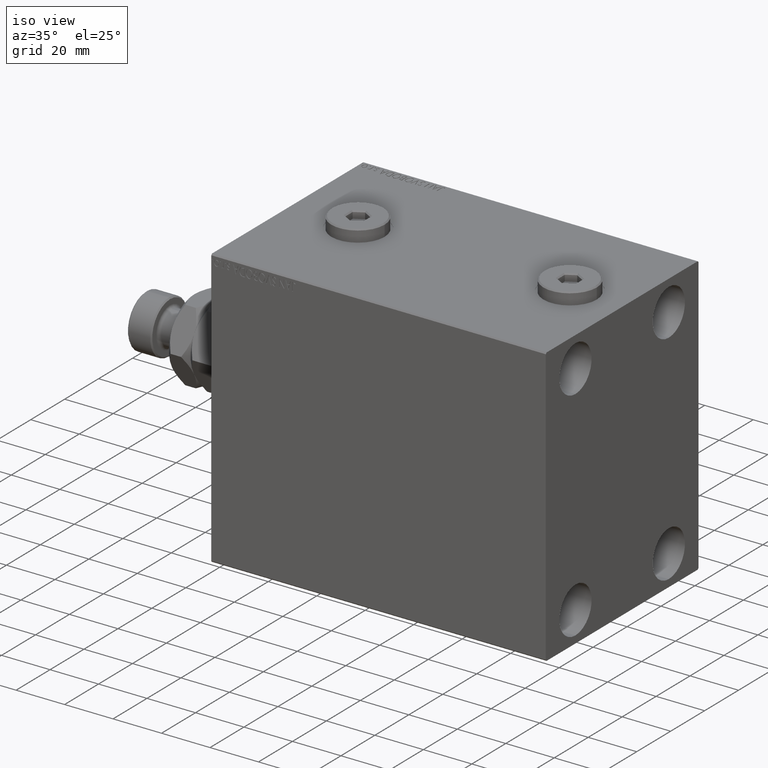
[diagram: clean part render]
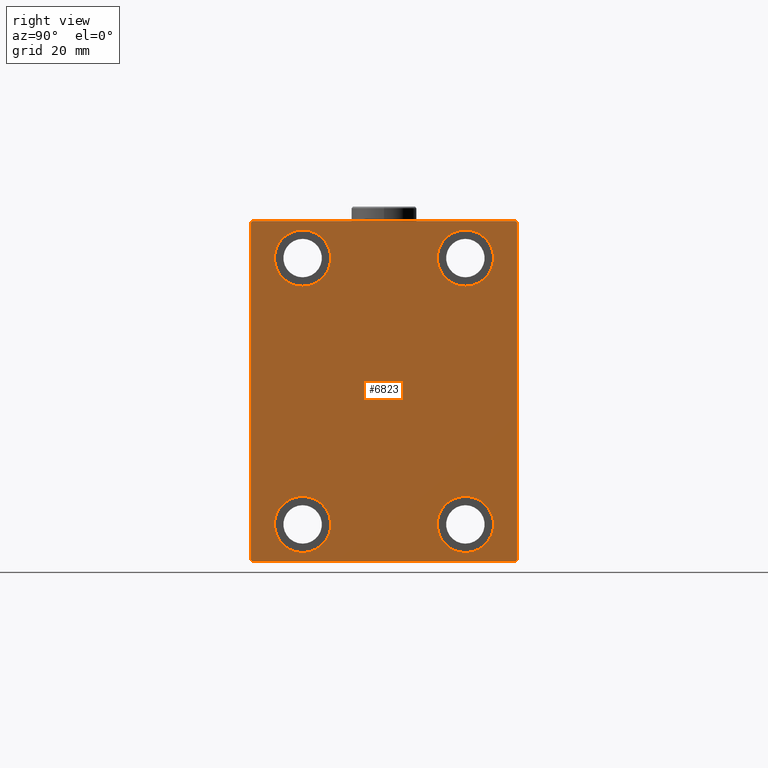
[diagram: tour spotlight — one face highlighted and labeled with its STEP entity id]
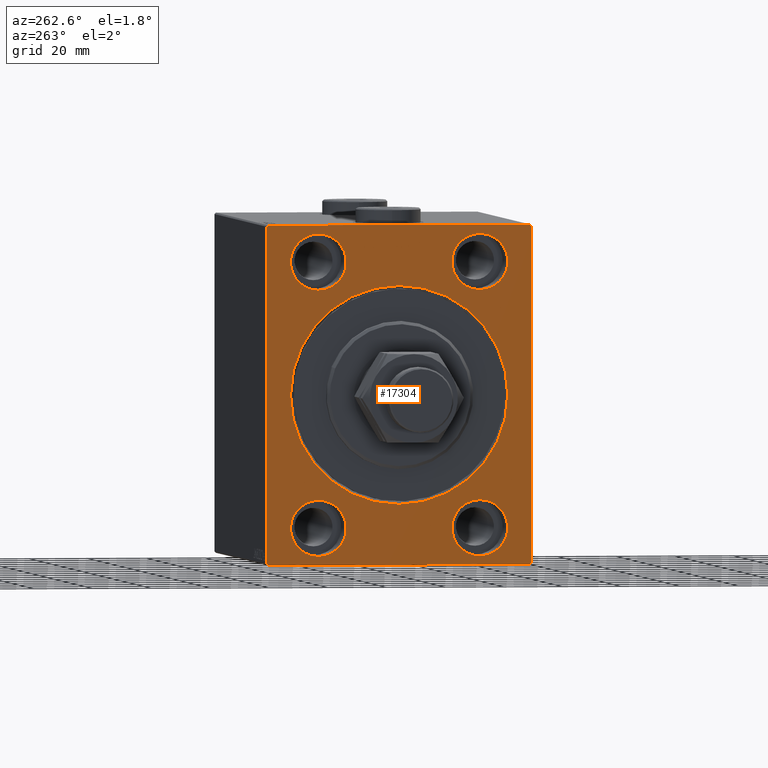
[diagram: tour spotlight — one face highlighted and labeled with its STEP entity id]
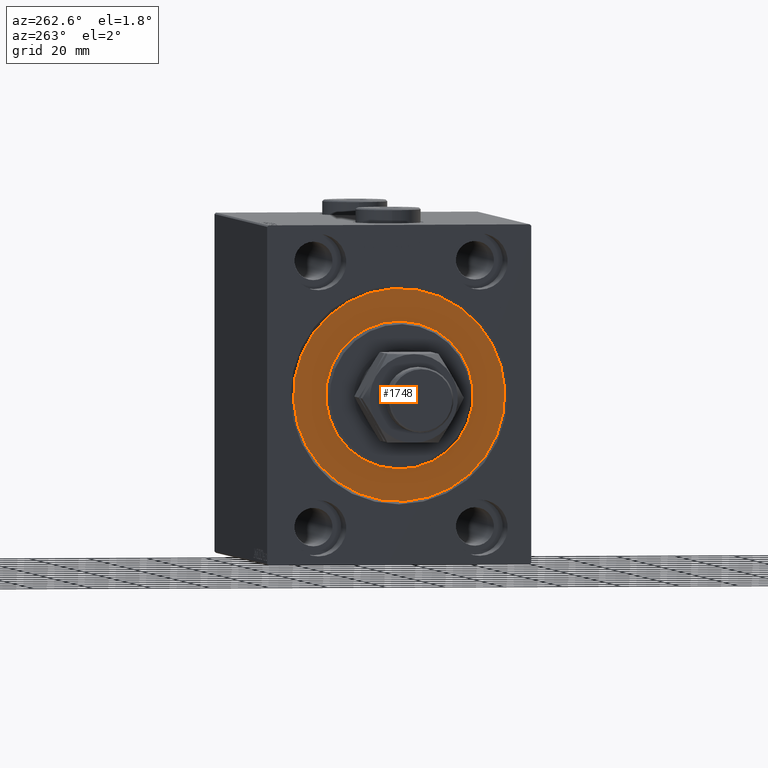
[diagram: tour spotlight — one face highlighted and labeled with its STEP entity id]
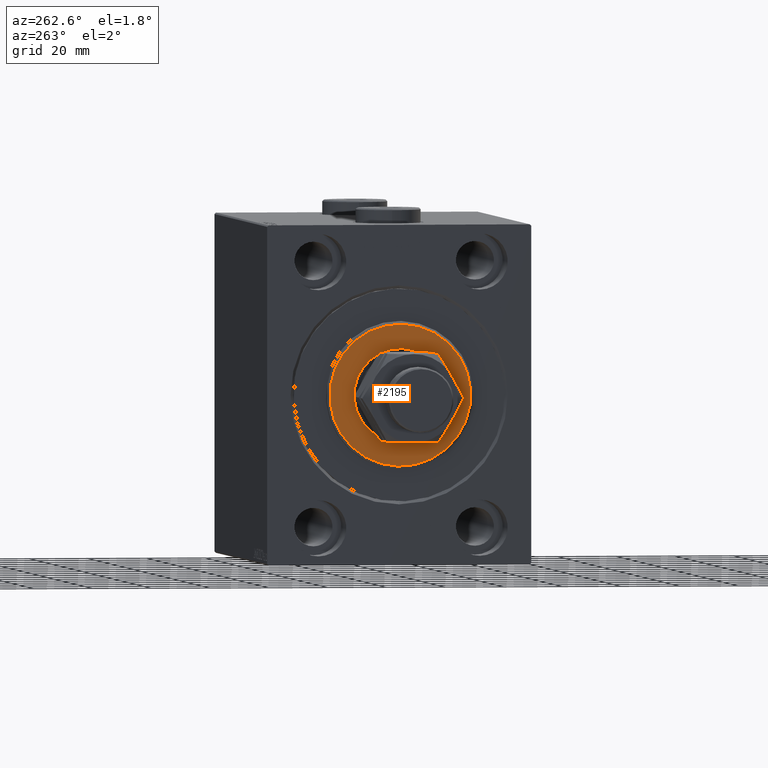
[diagram: tour spotlight — one face highlighted and labeled with its STEP entity id]
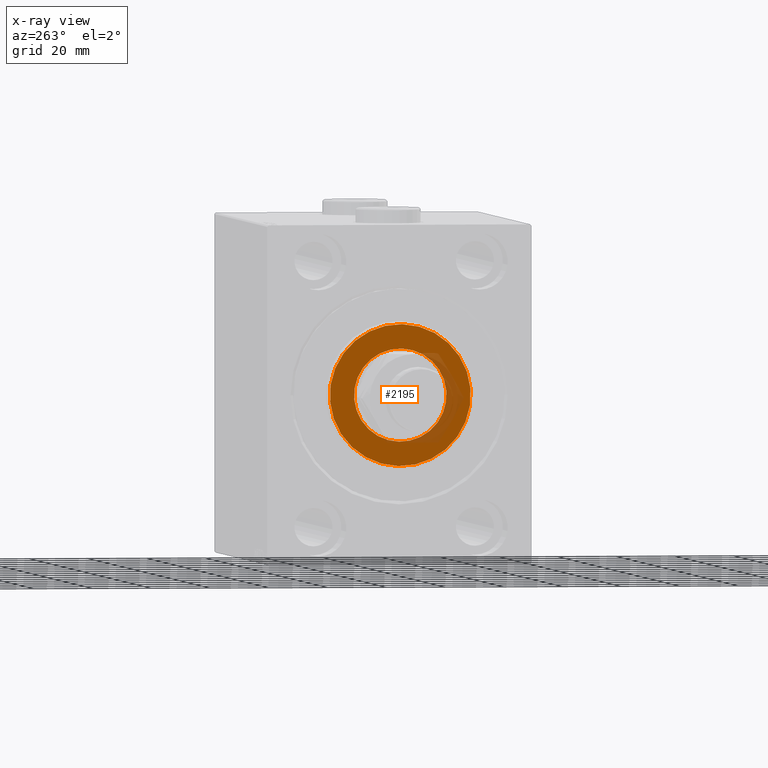
[diagram: x-ray of the same camera — body ghosted, this tour face saturated]
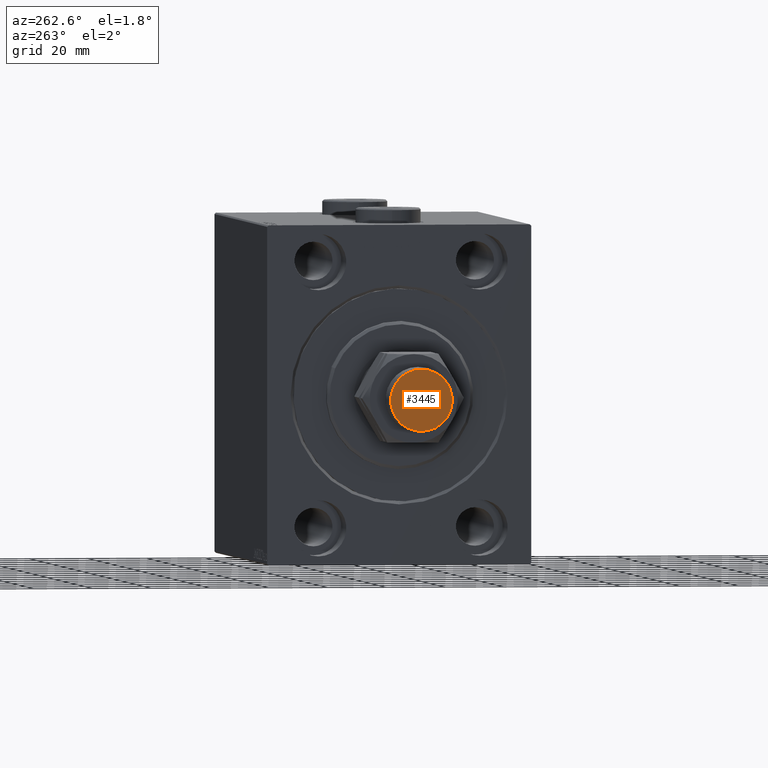
[diagram: tour spotlight — one face highlighted and labeled with its STEP entity id]
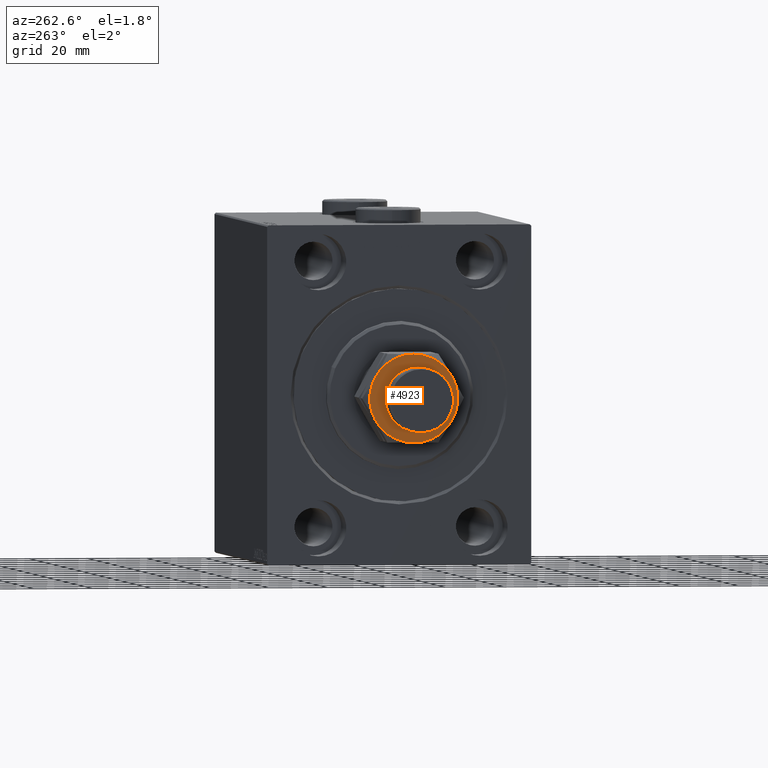
[diagram: tour spotlight — one face highlighted and labeled with its STEP entity id]
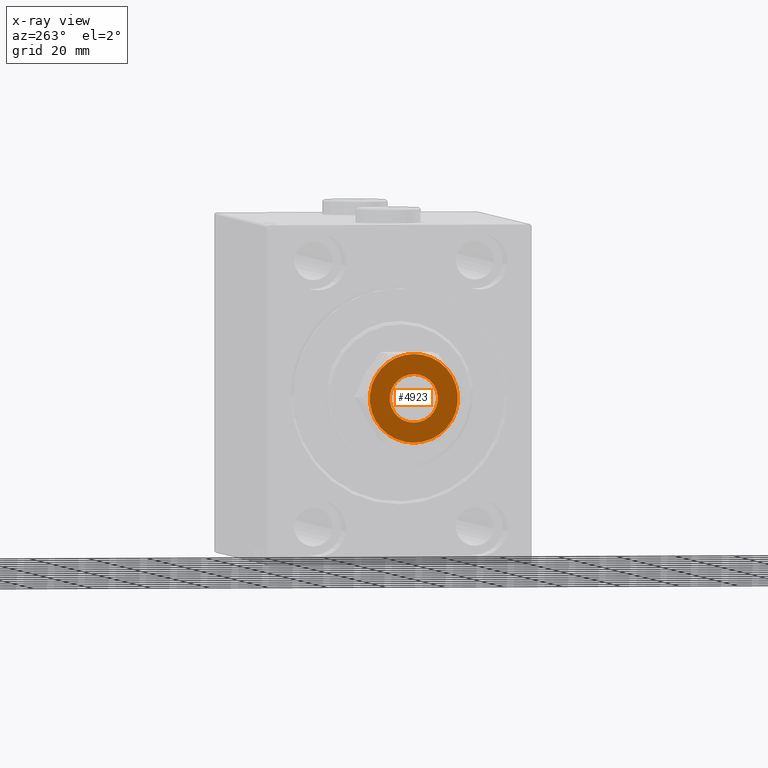
[diagram: x-ray of the same camera — body ghosted, this tour face saturated]
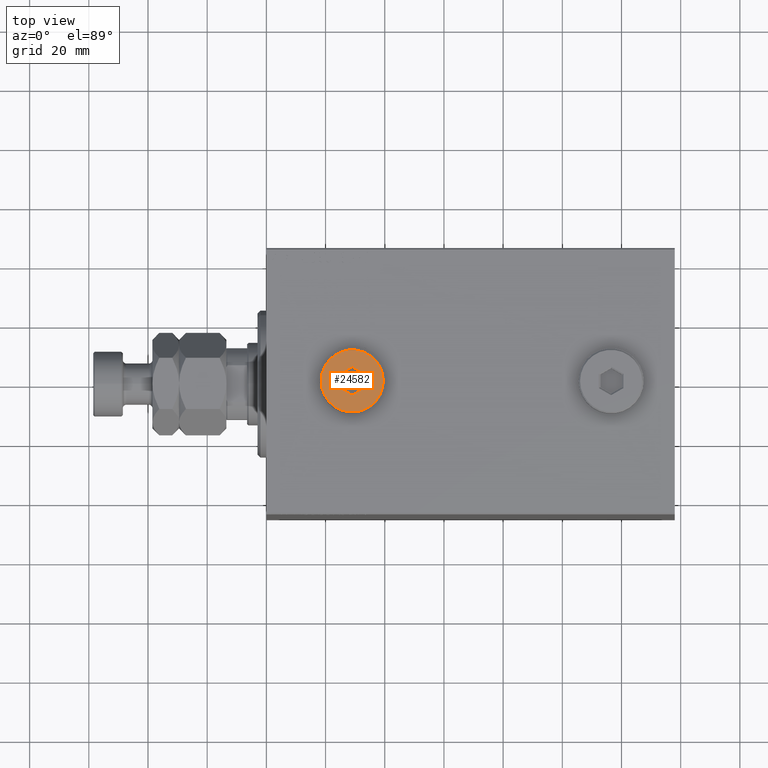
[diagram: tour spotlight — one face highlighted and labeled with its STEP entity id]
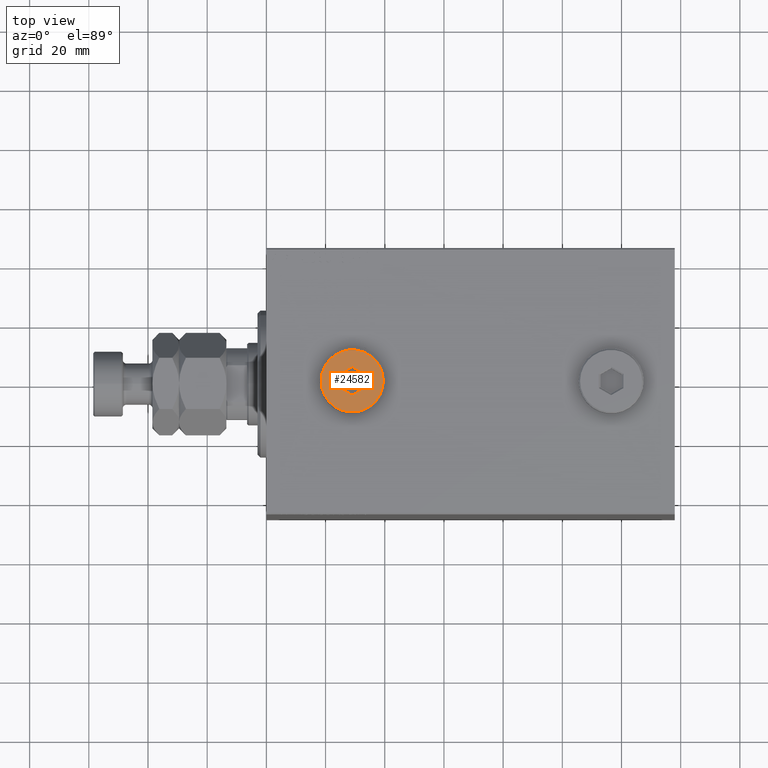
[diagram: tour spotlight — one face highlighted and labeled with its STEP entity id]
A machine part: a face-by-face anatomy tour. The part has 971 B-rep faces; the first image is the clean iso view, then the 8 largest visible faces are spotlighted one at a time (largest first), each with its STEP entity span.

Face 1 — right view, entity #6823. In plain terms, the highlighted planar face has unit normal (1, 0, 0).
Definition (entity closure, byte-faithful):
#259 = VERTEX_POINT ( 'NONE', #20999 ) ;
#633 = FACE_BOUND ( 'NONE', #39600, .T. ) ;
#1250 = CIRCLE ( 'NONE', #28539, 9.500000000000001776 ) ;
#1330 = PLANE ( 'NONE',  #40350 ) ;
#2190 = CARTESIAN_POINT ( 'NONE',  ( 138.0000000000000000, 45.00000000000001421, -57.50000000000000711 ) ) ;
#2243 = VECTOR ( 'NONE', #8133, 1000.000000000000114 ) ;
#2606 = VERTEX_POINT ( 'NONE', #5081 ) ;
#3228 = DIRECTION ( 'NONE',  ( 0.000000000000000000, 0.000000000000000000, 1.000000000000000000 ) ) ;
#3335 = AXIS2_PLACEMENT_3D ( 'NONE', #42101, #9553, #24047 ) ;
#3443 = ORIENTED_EDGE ( 'NONE', *, *, #8378, .T. ) ;
#3777 = DIRECTION ( 'NONE',  ( 0.000000000000000000, 0.000000000000000000, -1.000000000000000000 ) ) ;
#3875 = VERTEX_POINT ( 'NONE', #25778 ) ;
#3960 = VERTEX_POINT ( 'NONE', #7481 ) ;
#4338 = LINE ( 'NONE', #7898, #2243 ) ;
#4898 = DIRECTION ( 'NONE',  ( 1.000000000000000000, 0.000000000000000000, 0.000000000000000000 ) ) ;
#5053 = CARTESIAN_POINT ( 'NONE',  ( 138.0000000000000000, -44.50000000000000000, 57.49999999999999289 ) ) ;
#5081 = CARTESIAN_POINT ( 'NONE',  ( 138.0000000000000000, 45.00000000000000000, 56.99999999999997868 ) ) ;
#5139 = CARTESIAN_POINT ( 'NONE',  ( 138.0000000000000000, -27.50000000000000000, -54.49999999999998579 ) ) ;
#5606 = CIRCLE ( 'NONE', #3335, 9.500000000000001776 ) ;
#6158 = CARTESIAN_POINT ( 'NONE',  ( 138.0000000000000000, -27.49999999999998934, 45.00000000000000711 ) ) ;
#6283 = VECTOR ( 'NONE', #19737, 1000.000000000000000 ) ;
#6608 = ORIENTED_EDGE ( 'NONE', *, *, #17448, .T. ) ;
#6673 = VERTEX_POINT ( 'NONE', #27499 ) ;
#6783 = AXIS2_PLACEMENT_3D ( 'NONE', #30379, #26830, #34185 ) ;
#6823 = ADVANCED_FACE ( 'NONE', ( #11566, #19178, #33191, #633, #33657 ), #1330, .T. ) ;
#6833 = DIRECTION ( 'NONE',  ( 0.000000000000000000, -0.7071067811865474617, -0.7071067811865474617 ) ) ;
#6950 = CIRCLE ( 'NONE', #10014, 9.500000000000001776 ) ;
#7256 = EDGE_CURVE ( 'NONE', #3875, #12709, #14487, .T. ) ;
#7481 = CARTESIAN_POINT ( 'NONE',  ( 138.0000000000000000, -27.49999999999998934, 54.50000000000000711 ) ) ;
#7519 = DIRECTION ( 'NONE',  ( 0.000000000000000000, 0.000000000000000000, -1.000000000000000000 ) ) ;
#7612 = EDGE_LOOP ( 'NONE', ( #7623, #3443, #16009, #12769, #34626, #22435, #41988, #32665 ) ) ;
#7623 = ORIENTED_EDGE ( 'NONE', *, *, #7256, .T. ) ;
#7898 = CARTESIAN_POINT ( 'NONE',  ( 138.0000000000000000, -51.00000000000000000, -51.00000000000000000 ) ) ;
#8133 = DIRECTION ( 'NONE',  ( -0.000000000000000000, 0.7071067811865474617, -0.7071067811865474617 ) ) ;
#8378 = EDGE_CURVE ( 'NONE', #12709, #38410, #24669, .T. ) ;
#9394 = ORIENTED_EDGE ( 'NONE', *, *, #15925, .T. ) ;
#9553 = DIRECTION ( 'NONE',  ( -1.000000000000000000, -0.000000000000000000, -0.000000000000000000 ) ) ;
#9914 = AXIS2_PLACEMENT_3D ( 'NONE', #38635, #35774, #3228 ) ;
#9962 = DIRECTION ( 'NONE',  ( -1.000000000000000000, -0.000000000000000000, -0.000000000000000000 ) ) ;
#10014 = AXIS2_PLACEMENT_3D ( 'NONE', #6158, #32293, #16867 ) ;
#10266 = EDGE_CURVE ( 'NONE', #6673, #259, #26395, .T. ) ;
#10446 = LINE ( 'NONE', #18523, #31198 ) ;
#11161 = DIRECTION ( 'NONE',  ( 0.000000000000000000, -1.000000000000000000, -1.541976423090495387E-16 ) ) ;
#11556 = EDGE_CURVE ( 'NONE', #2606, #3875, #16275, .T. ) ;
#11566 = FACE_BOUND ( 'NONE', #24453, .T. ) ;
#11611 = CARTESIAN_POINT ( 'NONE',  ( 138.0000000000000000, -45.00000000000000000, 57.00000000000002132 ) ) ;
#11891 = CARTESIAN_POINT ( 'NONE',  ( 138.0000000000000000, 51.00000000000000711, -51.00000000000000711 ) ) ;
#12052 = CARTESIAN_POINT ( 'NONE',  ( 138.0000000000000000, 27.49999999999998934, -54.49999999999998579 ) ) ;
#12292 = DIRECTION ( 'NONE',  ( -1.000000000000000000, -0.000000000000000000, -0.000000000000000000 ) ) ;
#12709 = VERTEX_POINT ( 'NONE', #5053 ) ;
#12769 = ORIENTED_EDGE ( 'NONE', *, *, #33033, .T. ) ;
#12847 = EDGE_CURVE ( 'NONE', #40835, #16822, #5606, .T. ) ;
#13832 = EDGE_CURVE ( 'NONE', #35738, #2606, #38072, .T. ) ;
#13864 = CARTESIAN_POINT ( 'NONE',  ( 138.0000000000000000, 27.50000000000001066, 35.50000000000000711 ) ) ;
#14283 = DIRECTION ( 'NONE',  ( -0.000000000000000000, -0.7071067811865474617, 0.7071067811865474617 ) ) ;
#14487 = LINE ( 'NONE', #43232, #37395 ) ;
#15088 = ORIENTED_EDGE ( 'NONE', *, *, #39141, .T. ) ;
#15868 = CARTESIAN_POINT ( 'NONE',  ( 138.0000000000000000, 27.49999999999998934, -44.99999999999998579 ) ) ;
#15925 = EDGE_CURVE ( 'NONE', #21046, #43838, #1250, .T. ) ;
#16009 = ORIENTED_EDGE ( 'NONE', *, *, #37629, .T. ) ;
#16109 = DIRECTION ( 'NONE',  ( 0.000000000000000000, 0.000000000000000000, 1.000000000000000000 ) ) ;
#16275 = LINE ( 'NONE', #46834, #26075 ) ;
#16822 = VERTEX_POINT ( 'NONE', #13864 ) ;
#16867 = DIRECTION ( 'NONE',  ( 0.000000000000000000, 0.000000000000000000, 1.000000000000000000 ) ) ;
#17103 = DIRECTION ( 'NONE',  ( 0.000000000000000000, 0.000000000000000000, 1.000000000000000000 ) ) ;
#17448 = EDGE_CURVE ( 'NONE', #40842, #3960, #36827, .T. ) ;
#18523 = CARTESIAN_POINT ( 'NONE',  ( 138.0000000000000000, -45.00000000000000000, 57.49999999999999289 ) ) ;
#19178 = FACE_BOUND ( 'NONE', #33749, .T. ) ;
#19628 = VERTEX_POINT ( 'NONE', #29620 ) ;
#19737 = DIRECTION ( 'NONE',  ( 0.000000000000000000, 1.000000000000000000, 0.000000000000000000 ) ) ;
#20884 = CARTESIAN_POINT ( 'NONE',  ( 138.0000000000000000, -51.00000000000000711, 51.00000000000000711 ) ) ;
#20999 = CARTESIAN_POINT ( 'NONE',  ( 138.0000000000000000, 44.49999999999998579, -57.50000000000000711 ) ) ;
#21046 = VERTEX_POINT ( 'NONE', #35233 ) ;
#21348 = AXIS2_PLACEMENT_3D ( 'NONE', #24694, #9962, #17103 ) ;
#22173 = VECTOR ( 'NONE', #6833, 1000.000000000000114 ) ;
#22208 = CARTESIAN_POINT ( 'NONE',  ( 138.0000000000000000, -27.49999999999998934, 35.50000000000000711 ) ) ;
#22435 = ORIENTED_EDGE ( 'NONE', *, *, #35525, .T. ) ;
#22821 = VECTOR ( 'NONE', #40876, 1000.000000000000114 ) ;
#23747 = ORIENTED_EDGE ( 'NONE', *, *, #41266, .T. ) ;
#24047 = DIRECTION ( 'NONE',  ( 0.000000000000000000, 0.000000000000000000, 1.000000000000000000 ) ) ;
#24453 = EDGE_LOOP ( 'NONE', ( #28363, #23747 ) ) ;
#24669 = LINE ( 'NONE', #20884, #22173 ) ;
#24694 = CARTESIAN_POINT ( 'NONE',  ( 138.0000000000000000, 27.49999999999998934, -44.99999999999998579 ) ) ;
#25778 = CARTESIAN_POINT ( 'NONE',  ( 138.0000000000000000, 44.50000000000000000, 57.50000000000000711 ) ) ;
#26075 = VECTOR ( 'NONE', #14283, 1000.000000000000114 ) ;
#26395 = LINE ( 'NONE', #37313, #6283 ) ;
#26786 = DIRECTION ( 'NONE',  ( 0.000000000000000000, 0.000000000000000000, 1.000000000000000000 ) ) ;
#26798 = DIRECTION ( 'NONE',  ( -1.000000000000000000, -0.000000000000000000, -0.000000000000000000 ) ) ;
#26830 = DIRECTION ( 'NONE',  ( -1.000000000000000000, -0.000000000000000000, -0.000000000000000000 ) ) ;
#27314 = CIRCLE ( 'NONE', #29578, 9.500000000000001776 ) ;
#27499 = CARTESIAN_POINT ( 'NONE',  ( 138.0000000000000000, -44.50000000000000000, -57.50000000000000711 ) ) ;
#28363 = ORIENTED_EDGE ( 'NONE', *, *, #34309, .T. ) ;
#28539 = AXIS2_PLACEMENT_3D ( 'NONE', #41521, #26798, #16109 ) ;
#29460 = VERTEX_POINT ( 'NONE', #41118 ) ;
#29578 = AXIS2_PLACEMENT_3D ( 'NONE', #15868, #12292, #26786 ) ;
#29620 = CARTESIAN_POINT ( 'NONE',  ( 138.0000000000000000, -45.00000000000000000, -57.00000000000000711 ) ) ;
#30379 = CARTESIAN_POINT ( 'NONE',  ( 138.0000000000000000, -27.50000000000000000, -44.99999999999998579 ) ) ;
#30389 = CIRCLE ( 'NONE', #9914, 9.500000000000001776 ) ;
#30936 = DIRECTION ( 'NONE',  ( 0.000000000000000000, -1.206764157201257045E-16, 1.000000000000000000 ) ) ;
#31198 = VECTOR ( 'NONE', #3777, 1000.000000000000000 ) ;
#32009 = ORIENTED_EDGE ( 'NONE', *, *, #12847, .T. ) ;
#32293 = DIRECTION ( 'NONE',  ( -1.000000000000000000, -0.000000000000000000, -0.000000000000000000 ) ) ;
#32665 = ORIENTED_EDGE ( 'NONE', *, *, #11556, .T. ) ;
#33033 = EDGE_CURVE ( 'NONE', #19628, #6673, #4338, .T. ) ;
#33191 = FACE_BOUND ( 'NONE', #36432, .T. ) ;
#33506 = EDGE_CURVE ( 'NONE', #43838, #21046, #42472, .T. ) ;
#33657 = FACE_OUTER_BOUND ( 'NONE', #7612, .T. ) ;
#33659 = VERTEX_POINT ( 'NONE', #12052 ) ;
#33749 = EDGE_LOOP ( 'NONE', ( #6608, #15088 ) ) ;
#34185 = DIRECTION ( 'NONE',  ( 0.000000000000000000, 0.000000000000000000, 1.000000000000000000 ) ) ;
#34309 = EDGE_CURVE ( 'NONE', #33659, #29460, #27314, .T. ) ;
#34626 = ORIENTED_EDGE ( 'NONE', *, *, #10266, .T. ) ;
#34996 = CIRCLE ( 'NONE', #21348, 9.500000000000001776 ) ;
#35209 = VECTOR ( 'NONE', #30936, 1000.000000000000000 ) ;
#35233 = CARTESIAN_POINT ( 'NONE',  ( 138.0000000000000000, -27.50000000000000000, -35.49999999999998579 ) ) ;
#35525 = EDGE_CURVE ( 'NONE', #259, #35738, #44449, .T. ) ;
#35738 = VERTEX_POINT ( 'NONE', #36308 ) ;
#35774 = DIRECTION ( 'NONE',  ( -1.000000000000000000, -0.000000000000000000, -0.000000000000000000 ) ) ;
#35936 = EDGE_CURVE ( 'NONE', #16822, #40835, #30389, .T. ) ;
#36072 = CARTESIAN_POINT ( 'NONE',  ( 138.0000000000000000, -27.49999999999998934, 45.00000000000000711 ) ) ;
#36308 = CARTESIAN_POINT ( 'NONE',  ( 138.0000000000000000, 45.00000000000001421, -57.00000000000000711 ) ) ;
#36432 = EDGE_LOOP ( 'NONE', ( #45756, #32009 ) ) ;
#36827 = CIRCLE ( 'NONE', #45941, 9.500000000000001776 ) ;
#37313 = CARTESIAN_POINT ( 'NONE',  ( 138.0000000000000000, -45.00000000000000000, -57.50000000000000711 ) ) ;
#37395 = VECTOR ( 'NONE', #11161, 1000.000000000000000 ) ;
#37629 = EDGE_CURVE ( 'NONE', #38410, #19628, #10446, .T. ) ;
#38072 = LINE ( 'NONE', #2190, #35209 ) ;
#38410 = VERTEX_POINT ( 'NONE', #11611 ) ;
#38635 = CARTESIAN_POINT ( 'NONE',  ( 138.0000000000000000, 27.50000000000001066, 45.00000000000000711 ) ) ;
#39141 = EDGE_CURVE ( 'NONE', #3960, #40842, #6950, .T. ) ;
#39600 = EDGE_LOOP ( 'NONE', ( #39858, #9394 ) ) ;
#39787 = CARTESIAN_POINT ( 'NONE',  ( 138.0000000000000000, 27.50000000000001066, 54.50000000000000711 ) ) ;
#39858 = ORIENTED_EDGE ( 'NONE', *, *, #33506, .T. ) ;
#40350 = AXIS2_PLACEMENT_3D ( 'NONE', #44586, #4898, #7519 ) ;
#40835 = VERTEX_POINT ( 'NONE', #39787 ) ;
#40842 = VERTEX_POINT ( 'NONE', #22208 ) ;
#40876 = DIRECTION ( 'NONE',  ( -0.000000000000000000, 0.7071067811865474617, 0.7071067811865474617 ) ) ;
#41118 = CARTESIAN_POINT ( 'NONE',  ( 138.0000000000000000, 27.49999999999998934, -35.49999999999998579 ) ) ;
#41266 = EDGE_CURVE ( 'NONE', #29460, #33659, #34996, .T. ) ;
#41521 = CARTESIAN_POINT ( 'NONE',  ( 138.0000000000000000, -27.50000000000000000, -44.99999999999998579 ) ) ;
#41988 = ORIENTED_EDGE ( 'NONE', *, *, #13832, .T. ) ;
#42101 = CARTESIAN_POINT ( 'NONE',  ( 138.0000000000000000, 27.50000000000001066, 45.00000000000000711 ) ) ;
#42472 = CIRCLE ( 'NONE', #6783, 9.500000000000001776 ) ;
#42973 = DIRECTION ( 'NONE',  ( 0.000000000000000000, 0.000000000000000000, 1.000000000000000000 ) ) ;
#43232 = CARTESIAN_POINT ( 'NONE',  ( 138.0000000000000000, 45.00000000000000000, 57.50000000000000711 ) ) ;
#43682 = DIRECTION ( 'NONE',  ( -1.000000000000000000, -0.000000000000000000, -0.000000000000000000 ) ) ;
#43838 = VERTEX_POINT ( 'NONE', #5139 ) ;
#44449 = LINE ( 'NONE', #11891, #22821 ) ;
#44586 = CARTESIAN_POINT ( 'NONE',  ( 138.0000000000000000, 0.000000000000000000, 0.000000000000000000 ) ) ;
#45756 = ORIENTED_EDGE ( 'NONE', *, *, #35936, .T. ) ;
#45941 = AXIS2_PLACEMENT_3D ( 'NONE', #36072, #43682, #42973 ) ;
#46834 = CARTESIAN_POINT ( 'NONE',  ( 138.0000000000000000, 51.00000000000000000, 51.00000000000000000 ) ) ;

Face 2 — auxiliary view, entity #17304. In plain terms, the highlighted planar face has unit normal (1, 0, 0).
Definition (entity closure, byte-faithful):
#8 = FACE_BOUND ( 'NONE', #34457, .T. ) ;
#284 = CARTESIAN_POINT ( 'NONE',  ( 0.000000000000000000, -45.00000000000000000, 57.00000000000002132 ) ) ;
#337 = LINE ( 'NONE', #32656, #21843 ) ;
#795 = DIRECTION ( 'NONE',  ( 0.000000000000000000, 0.000000000000000000, 1.000000000000000000 ) ) ;
#1197 = DIRECTION ( 'NONE',  ( 0.000000000000000000, 0.000000000000000000, -1.000000000000000000 ) ) ;
#1526 = CARTESIAN_POINT ( 'NONE',  ( 0.000000000000000000, -44.50000000000000000, 57.49999999999999289 ) ) ;
#1573 = EDGE_LOOP ( 'NONE', ( #46467, #6529 ) ) ;
#1599 = CIRCLE ( 'NONE', #26669, 9.500000000000001776 ) ;
#2020 = LINE ( 'NONE', #41929, #12094 ) ;
#2187 = VERTEX_POINT ( 'NONE', #36582 ) ;
#2895 = AXIS2_PLACEMENT_3D ( 'NONE', #26494, #4177, #32933 ) ;
#3171 = ORIENTED_EDGE ( 'NONE', *, *, #38197, .T. ) ;
#3375 = DIRECTION ( 'NONE',  ( -1.000000000000000000, 0.000000000000000000, 0.000000000000000000 ) ) ;
#3556 = VERTEX_POINT ( 'NONE', #13030 ) ;
#3579 = PLANE ( 'NONE',  #27720 ) ;
#3812 = FACE_OUTER_BOUND ( 'NONE', #31721, .T. ) ;
#4177 = DIRECTION ( 'NONE',  ( 1.000000000000000000, 0.000000000000000000, 0.000000000000000000 ) ) ;
#5015 = AXIS2_PLACEMENT_3D ( 'NONE', #27857, #3375, #35220 ) ;
#5204 = CARTESIAN_POINT ( 'NONE',  ( 0.000000000000000000, -44.50000000000000000, -57.50000000000000711 ) ) ;
#5321 = LINE ( 'NONE', #9361, #43499 ) ;
#5412 = DIRECTION ( 'NONE',  ( -1.000000000000000000, 0.000000000000000000, 0.000000000000000000 ) ) ;
#6228 = DIRECTION ( 'NONE',  ( -1.000000000000000000, 0.000000000000000000, 0.000000000000000000 ) ) ;
#6529 = ORIENTED_EDGE ( 'NONE', *, *, #42350, .F. ) ;
#6622 = AXIS2_PLACEMENT_3D ( 'NONE', #30420, #38720, #16417 ) ;
#6777 = LINE ( 'NONE', #45532, #43431 ) ;
#7778 = EDGE_LOOP ( 'NONE', ( #8014, #35138 ) ) ;
#8014 = ORIENTED_EDGE ( 'NONE', *, *, #19313, .F. ) ;
#8267 = VECTOR ( 'NONE', #39708, 1000.000000000000000 ) ;
#8562 = DIRECTION ( 'NONE',  ( 1.000000000000000000, 0.000000000000000000, 0.000000000000000000 ) ) ;
#8628 = CARTESIAN_POINT ( 'NONE',  ( 0.000000000000000000, -45.00000000000000000, 57.00000000000002132 ) ) ;
#8808 = EDGE_CURVE ( 'NONE', #30538, #34526, #6777, .T. ) ;
#9361 = CARTESIAN_POINT ( 'NONE',  ( 0.000000000000000000, 44.50000000000000000, 57.50000000000000711 ) ) ;
#9385 = DIRECTION ( 'NONE',  ( -0.000000000000000000, -0.7071067811865474617, 0.7071067811865474617 ) ) ;
#9682 = CARTESIAN_POINT ( 'NONE',  ( 0.000000000000000000, -27.49999999999998934, 45.00000000000000711 ) ) ;
#9861 = CARTESIAN_POINT ( 'NONE',  ( 0.000000000000000000, 27.49999999999998934, -54.49999999999998579 ) ) ;
#9946 = ORIENTED_EDGE ( 'NONE', *, *, #27055, .F. ) ;
#10648 = CARTESIAN_POINT ( 'NONE',  ( 0.000000000000000000, -27.50000000000000000, -44.99999999999998579 ) ) ;
#10712 = DIRECTION ( 'NONE',  ( 1.000000000000000000, 0.000000000000000000, 0.000000000000000000 ) ) ;
#10794 = CARTESIAN_POINT ( 'NONE',  ( 0.000000000000000000, 0.000000000000000000, 37.00000000000006395 ) ) ;
#10852 = VERTEX_POINT ( 'NONE', #25744 ) ;
#10967 = VERTEX_POINT ( 'NONE', #40585 ) ;
#11189 = FACE_BOUND ( 'NONE', #45570, .T. ) ;
#11201 = CARTESIAN_POINT ( 'NONE',  ( 0.000000000000000000, -45.00000000000000000, 57.49999999999999289 ) ) ;
#11578 = EDGE_CURVE ( 'NONE', #30538, #3556, #5321, .T. ) ;
#11866 = VERTEX_POINT ( 'NONE', #24911 ) ;
#12094 = VECTOR ( 'NONE', #9385, 1000.000000000000114 ) ;
#12432 = CARTESIAN_POINT ( 'NONE',  ( 0.000000000000000000, -27.49999999999998934, 45.00000000000000711 ) ) ;
#12474 = CARTESIAN_POINT ( 'NONE',  ( 0.000000000000000000, 45.00000000000001421, -57.00000000000000711 ) ) ;
#12590 = CARTESIAN_POINT ( 'NONE',  ( 0.000000000000000000, 0.000000000000000000, 0.000000000000000000 ) ) ;
#13030 = CARTESIAN_POINT ( 'NONE',  ( 0.000000000000000000, 45.00000000000000000, 56.99999999999997868 ) ) ;
#13034 = ORIENTED_EDGE ( 'NONE', *, *, #27589, .F. ) ;
#13681 = DIRECTION ( 'NONE',  ( 0.000000000000000000, -1.000000000000000000, -1.541976423090495387E-16 ) ) ;
#13747 = DIRECTION ( 'NONE',  ( 0.000000000000000000, 0.000000000000000000, 1.000000000000000000 ) ) ;
#14250 = CARTESIAN_POINT ( 'NONE',  ( 0.000000000000000000, -27.50000000000000000, -35.49999999999998579 ) ) ;
#14282 = FACE_BOUND ( 'NONE', #21080, .T. ) ;
#14534 = CIRCLE ( 'NONE', #30455, 37.00000000000006395 ) ;
#14756 = FACE_BOUND ( 'NONE', #7778, .T. ) ;
#15118 = VERTEX_POINT ( 'NONE', #21587 ) ;
#15135 = ORIENTED_EDGE ( 'NONE', *, *, #28987, .T. ) ;
#15296 = DIRECTION ( 'NONE',  ( -0.000000000000000000, 0.7071067811865474617, 0.7071067811865474617 ) ) ;
#15873 = ORIENTED_EDGE ( 'NONE', *, *, #27616, .F. ) ;
#15969 = AXIS2_PLACEMENT_3D ( 'NONE', #27599, #27826, #16221 ) ;
#16092 = AXIS2_PLACEMENT_3D ( 'NONE', #9682, #5412, #34404 ) ;
#16221 = DIRECTION ( 'NONE',  ( 0.000000000000000000, 0.000000000000000000, 1.000000000000000000 ) ) ;
#16417 = DIRECTION ( 'NONE',  ( 0.000000000000000000, 0.000000000000000000, 1.000000000000000000 ) ) ;
#17296 = DIRECTION ( 'NONE',  ( -1.000000000000000000, 0.000000000000000000, 0.000000000000000000 ) ) ;
#17304 = ADVANCED_FACE ( 'NONE', ( #8, #14756, #46832, #14282, #11189, #3812 ), #3579, .F. ) ;
#17391 = CARTESIAN_POINT ( 'NONE',  ( 0.000000000000000000, 44.50000000000000000, 57.50000000000000711 ) ) ;
#17819 = CARTESIAN_POINT ( 'NONE',  ( 0.000000000000000000, -27.49999999999998934, 54.50000000000000711 ) ) ;
#17938 = EDGE_CURVE ( 'NONE', #21340, #11866, #27186, .T. ) ;
#19203 = ORIENTED_EDGE ( 'NONE', *, *, #8808, .F. ) ;
#19313 = EDGE_CURVE ( 'NONE', #10967, #40777, #45985, .T. ) ;
#19431 = VERTEX_POINT ( 'NONE', #284 ) ;
#20812 = VERTEX_POINT ( 'NONE', #5204 ) ;
#21080 = EDGE_LOOP ( 'NONE', ( #13034, #25341 ) ) ;
#21340 = VERTEX_POINT ( 'NONE', #31392 ) ;
#21506 = VERTEX_POINT ( 'NONE', #35651 ) ;
#21587 = CARTESIAN_POINT ( 'NONE',  ( 0.000000000000000000, -27.49999999999998934, 35.50000000000000711 ) ) ;
#21843 = VECTOR ( 'NONE', #32415, 1000.000000000000000 ) ;
#22896 = LINE ( 'NONE', #8628, #30135 ) ;
#23224 = VERTEX_POINT ( 'NONE', #10794 ) ;
#23225 = EDGE_CURVE ( 'NONE', #21340, #3556, #337, .T. ) ;
#23833 = CARTESIAN_POINT ( 'NONE',  ( 0.000000000000000000, -45.00000000000000000, -57.50000000000000711 ) ) ;
#23859 = DIRECTION ( 'NONE',  ( -0.000000000000000000, 0.7071067811865474617, -0.7071067811865474617 ) ) ;
#24888 = CARTESIAN_POINT ( 'NONE',  ( 0.000000000000000000, 27.50000000000001066, 35.50000000000000711 ) ) ;
#24911 = CARTESIAN_POINT ( 'NONE',  ( 0.000000000000000000, 44.49999999999998579, -57.50000000000000711 ) ) ;
#25341 = ORIENTED_EDGE ( 'NONE', *, *, #43610, .F. ) ;
#25634 = ORIENTED_EDGE ( 'NONE', *, *, #25647, .T. ) ;
#25647 = EDGE_CURVE ( 'NONE', #19431, #34526, #22896, .T. ) ;
#25676 = DIRECTION ( 'NONE',  ( 0.000000000000000000, 0.000000000000000000, -1.000000000000000000 ) ) ;
#25744 = CARTESIAN_POINT ( 'NONE',  ( 0.000000000000000000, -27.50000000000000000, -54.49999999999998579 ) ) ;
#25909 = ORIENTED_EDGE ( 'NONE', *, *, #11578, .T. ) ;
#26494 = CARTESIAN_POINT ( 'NONE',  ( 0.000000000000000000, 0.000000000000000000, 0.000000000000000000 ) ) ;
#26669 = AXIS2_PLACEMENT_3D ( 'NONE', #12432, #44521, #795 ) ;
#26707 = CIRCLE ( 'NONE', #16092, 9.500000000000001776 ) ;
#27055 = EDGE_CURVE ( 'NONE', #10852, #42174, #31653, .T. ) ;
#27115 = VECTOR ( 'NONE', #34749, 1000.000000000000000 ) ;
#27157 = CARTESIAN_POINT ( 'NONE',  ( 0.000000000000000000, 27.50000000000001066, 45.00000000000000711 ) ) ;
#27168 = VERTEX_POINT ( 'NONE', #17819 ) ;
#27186 = LINE ( 'NONE', #12474, #29996 ) ;
#27446 = ORIENTED_EDGE ( 'NONE', *, *, #17938, .T. ) ;
#27589 = EDGE_CURVE ( 'NONE', #45296, #46868, #33203, .T. ) ;
#27599 = CARTESIAN_POINT ( 'NONE',  ( 0.000000000000000000, 27.49999999999998934, -44.99999999999998579 ) ) ;
#27616 = EDGE_CURVE ( 'NONE', #20812, #11866, #38778, .T. ) ;
#27720 = AXIS2_PLACEMENT_3D ( 'NONE', #43259, #10712, #25676 ) ;
#27826 = DIRECTION ( 'NONE',  ( -1.000000000000000000, 0.000000000000000000, 0.000000000000000000 ) ) ;
#27857 = CARTESIAN_POINT ( 'NONE',  ( 0.000000000000000000, 27.49999999999998934, -44.99999999999998579 ) ) ;
#28632 = EDGE_CURVE ( 'NONE', #42174, #10852, #38535, .T. ) ;
#28987 = EDGE_CURVE ( 'NONE', #23224, #2187, #46144, .T. ) ;
#29996 = VECTOR ( 'NONE', #31214, 1000.000000000000114 ) ;
#30135 = VECTOR ( 'NONE', #15296, 1000.000000000000114 ) ;
#30420 = CARTESIAN_POINT ( 'NONE',  ( 0.000000000000000000, -27.50000000000000000, -44.99999999999998579 ) ) ;
#30455 = AXIS2_PLACEMENT_3D ( 'NONE', #12590, #8562, #1197 ) ;
#30538 = VERTEX_POINT ( 'NONE', #17391 ) ;
#30625 = EDGE_CURVE ( 'NONE', #19431, #21506, #39944, .T. ) ;
#31214 = DIRECTION ( 'NONE',  ( 0.000000000000000000, -0.7071067811865474617, -0.7071067811865474617 ) ) ;
#31392 = CARTESIAN_POINT ( 'NONE',  ( 0.000000000000000000, 45.00000000000001421, -57.00000000000000711 ) ) ;
#31490 = EDGE_CURVE ( 'NONE', #20812, #21506, #2020, .T. ) ;
#31541 = ORIENTED_EDGE ( 'NONE', *, *, #30625, .F. ) ;
#31653 = CIRCLE ( 'NONE', #6622, 9.500000000000001776 ) ;
#31721 = EDGE_LOOP ( 'NONE', ( #31541, #25634, #19203, #25909, #33671, #27446, #15873, #44370 ) ) ;
#31800 = DIRECTION ( 'NONE',  ( -1.000000000000000000, 0.000000000000000000, 0.000000000000000000 ) ) ;
#32415 = DIRECTION ( 'NONE',  ( 0.000000000000000000, -1.206764157201257045E-16, 1.000000000000000000 ) ) ;
#32656 = CARTESIAN_POINT ( 'NONE',  ( 0.000000000000000000, 45.00000000000001421, -57.50000000000000711 ) ) ;
#32933 = DIRECTION ( 'NONE',  ( 0.000000000000000000, 0.000000000000000000, -1.000000000000000000 ) ) ;
#33203 = CIRCLE ( 'NONE', #42307, 9.500000000000001776 ) ;
#33671 = ORIENTED_EDGE ( 'NONE', *, *, #23225, .F. ) ;
#34404 = DIRECTION ( 'NONE',  ( 0.000000000000000000, 0.000000000000000000, 1.000000000000000000 ) ) ;
#34457 = EDGE_LOOP ( 'NONE', ( #15135, #3171 ) ) ;
#34526 = VERTEX_POINT ( 'NONE', #1526 ) ;
#34749 = DIRECTION ( 'NONE',  ( 0.000000000000000000, 1.000000000000000000, 0.000000000000000000 ) ) ;
#34892 = EDGE_CURVE ( 'NONE', #40777, #10967, #41725, .T. ) ;
#35138 = ORIENTED_EDGE ( 'NONE', *, *, #34892, .F. ) ;
#35220 = DIRECTION ( 'NONE',  ( 0.000000000000000000, 0.000000000000000000, 1.000000000000000000 ) ) ;
#35573 = CARTESIAN_POINT ( 'NONE',  ( 0.000000000000000000, 27.50000000000001066, 45.00000000000000711 ) ) ;
#35651 = CARTESIAN_POINT ( 'NONE',  ( 0.000000000000000000, -45.00000000000000000, -57.00000000000000711 ) ) ;
#36046 = DIRECTION ( 'NONE',  ( 0.000000000000000000, 0.000000000000000000, 1.000000000000000000 ) ) ;
#36582 = CARTESIAN_POINT ( 'NONE',  ( 0.000000000000000000, 4.531193156845213892E-15, -37.00000000000006395 ) ) ;
#37349 = AXIS2_PLACEMENT_3D ( 'NONE', #35573, #17296, #36046 ) ;
#37846 = ORIENTED_EDGE ( 'NONE', *, *, #28632, .F. ) ;
#38197 = EDGE_CURVE ( 'NONE', #2187, #23224, #14534, .T. ) ;
#38535 = CIRCLE ( 'NONE', #40035, 9.500000000000001776 ) ;
#38544 = DIRECTION ( 'NONE',  ( 0.000000000000000000, 0.000000000000000000, 1.000000000000000000 ) ) ;
#38720 = DIRECTION ( 'NONE',  ( -1.000000000000000000, 0.000000000000000000, 0.000000000000000000 ) ) ;
#38778 = LINE ( 'NONE', #23833, #27115 ) ;
#39708 = DIRECTION ( 'NONE',  ( 0.000000000000000000, 0.000000000000000000, -1.000000000000000000 ) ) ;
#39944 = LINE ( 'NONE', #11201, #8267 ) ;
#40035 = AXIS2_PLACEMENT_3D ( 'NONE', #10648, #31800, #13747 ) ;
#40585 = CARTESIAN_POINT ( 'NONE',  ( 0.000000000000000000, 27.49999999999998934, -35.49999999999998579 ) ) ;
#40777 = VERTEX_POINT ( 'NONE', #9861 ) ;
#41648 = EDGE_CURVE ( 'NONE', #27168, #15118, #1599, .T. ) ;
#41725 = CIRCLE ( 'NONE', #15969, 9.500000000000001776 ) ;
#41929 = CARTESIAN_POINT ( 'NONE',  ( 0.000000000000000000, -44.50000000000000000, -57.50000000000000711 ) ) ;
#42174 = VERTEX_POINT ( 'NONE', #14250 ) ;
#42307 = AXIS2_PLACEMENT_3D ( 'NONE', #27157, #6228, #38544 ) ;
#42350 = EDGE_CURVE ( 'NONE', #15118, #27168, #26707, .T. ) ;
#43259 = CARTESIAN_POINT ( 'NONE',  ( 0.000000000000000000, 0.000000000000000000, 0.000000000000000000 ) ) ;
#43431 = VECTOR ( 'NONE', #13681, 1000.000000000000000 ) ;
#43499 = VECTOR ( 'NONE', #23859, 1000.000000000000114 ) ;
#43610 = EDGE_CURVE ( 'NONE', #46868, #45296, #46445, .T. ) ;
#44370 = ORIENTED_EDGE ( 'NONE', *, *, #31490, .T. ) ;
#44521 = DIRECTION ( 'NONE',  ( -1.000000000000000000, 0.000000000000000000, 0.000000000000000000 ) ) ;
#44952 = CARTESIAN_POINT ( 'NONE',  ( 0.000000000000000000, 27.50000000000001066, 54.50000000000000711 ) ) ;
#45296 = VERTEX_POINT ( 'NONE', #44952 ) ;
#45532 = CARTESIAN_POINT ( 'NONE',  ( 0.000000000000000000, 45.00000000000000000, 57.50000000000000711 ) ) ;
#45570 = EDGE_LOOP ( 'NONE', ( #37846, #9946 ) ) ;
#45985 = CIRCLE ( 'NONE', #5015, 9.500000000000001776 ) ;
#46144 = CIRCLE ( 'NONE', #2895, 37.00000000000006395 ) ;
#46445 = CIRCLE ( 'NONE', #37349, 9.500000000000001776 ) ;
#46467 = ORIENTED_EDGE ( 'NONE', *, *, #41648, .F. ) ;
#46832 = FACE_BOUND ( 'NONE', #1573, .T. ) ;
#46868 = VERTEX_POINT ( 'NONE', #24888 ) ;

Face 3 — auxiliary view, entity #1748. In plain terms, the highlighted planar face has unit normal (1, 0, -0).
Definition (entity closure, byte-faithful):
#571 = AXIS2_PLACEMENT_3D ( 'NONE', #29788, #32662, #36697 ) ;
#812 = CARTESIAN_POINT ( 'NONE',  ( 0.000000000000000000, 0.000000000000000000, 0.000000000000000000 ) ) ;
#1262 = ORIENTED_EDGE ( 'NONE', *, *, #23953, .F. ) ;
#1748 = ADVANCED_FACE ( 'NONE', ( #18411, #36698 ), #11044, .F. ) ;
#1822 = EDGE_CURVE ( 'NONE', #19162, #12729, #41073, .T. ) ;
#3882 = AXIS2_PLACEMENT_3D ( 'NONE', #25295, #35985, #21974 ) ;
#4087 = AXIS2_PLACEMENT_3D ( 'NONE', #37284, #29680, #26827 ) ;
#6067 = EDGE_CURVE ( 'NONE', #11230, #45764, #19177, .T. ) ;
#6666 = CARTESIAN_POINT ( 'NONE',  ( 0.000000000000000000, 0.000000000000000000, 25.00000000000000000 ) ) ;
#11044 = PLANE ( 'NONE',  #3882 ) ;
#11230 = VERTEX_POINT ( 'NONE', #29107 ) ;
#12729 = VERTEX_POINT ( 'NONE', #22428 ) ;
#13825 = CARTESIAN_POINT ( 'NONE',  ( 0.000000000000000000, 0.000000000000000000, 0.000000000000000000 ) ) ;
#18411 = FACE_BOUND ( 'NONE', #21281, .T. ) ;
#19162 = VERTEX_POINT ( 'NONE', #6666 ) ;
#19177 = CIRCLE ( 'NONE', #30536, 36.00000000000000000 ) ;
#20492 = DIRECTION ( 'NONE',  ( -1.000000000000000000, 0.000000000000000000, 0.000000000000000000 ) ) ;
#21281 = EDGE_LOOP ( 'NONE', ( #29226, #1262 ) ) ;
#21588 = EDGE_LOOP ( 'NONE', ( #35511, #27922 ) ) ;
#21974 = DIRECTION ( 'NONE',  ( 0.000000000000000000, 0.000000000000000000, 1.000000000000000000 ) ) ;
#22428 = CARTESIAN_POINT ( 'NONE',  ( 0.000000000000000000, 3.061616997868383043E-15, -25.00000000000000000 ) ) ;
#23953 = EDGE_CURVE ( 'NONE', #12729, #19162, #41540, .T. ) ;
#24050 = DIRECTION ( 'NONE',  ( 0.000000000000000000, 0.000000000000000000, 1.000000000000000000 ) ) ;
#25295 = CARTESIAN_POINT ( 'NONE',  ( 0.000000000000000000, 0.000000000000000000, 0.000000000000000000 ) ) ;
#25306 = CIRCLE ( 'NONE', #4087, 36.00000000000000000 ) ;
#26827 = DIRECTION ( 'NONE',  ( 0.000000000000000000, 0.000000000000000000, 1.000000000000000000 ) ) ;
#26932 = DIRECTION ( 'NONE',  ( 0.000000000000000000, 0.000000000000000000, -1.000000000000000000 ) ) ;
#27922 = ORIENTED_EDGE ( 'NONE', *, *, #46659, .F. ) ;
#29107 = CARTESIAN_POINT ( 'NONE',  ( 0.000000000000000000, 0.000000000000000000, -36.00000000000000000 ) ) ;
#29226 = ORIENTED_EDGE ( 'NONE', *, *, #1822, .F. ) ;
#29680 = DIRECTION ( 'NONE',  ( -1.000000000000000000, 0.000000000000000000, 0.000000000000000000 ) ) ;
#29788 = CARTESIAN_POINT ( 'NONE',  ( 0.000000000000000000, 0.000000000000000000, 0.000000000000000000 ) ) ;
#30536 = AXIS2_PLACEMENT_3D ( 'NONE', #13825, #20492, #24050 ) ;
#32662 = DIRECTION ( 'NONE',  ( 1.000000000000000000, -0.000000000000000000, 0.000000000000000000 ) ) ;
#35511 = ORIENTED_EDGE ( 'NONE', *, *, #6067, .F. ) ;
#35985 = DIRECTION ( 'NONE',  ( -1.000000000000000000, 0.000000000000000000, 0.000000000000000000 ) ) ;
#36697 = DIRECTION ( 'NONE',  ( 0.000000000000000000, 0.000000000000000000, -1.000000000000000000 ) ) ;
#36698 = FACE_OUTER_BOUND ( 'NONE', #21588, .T. ) ;
#37284 = CARTESIAN_POINT ( 'NONE',  ( 0.000000000000000000, 0.000000000000000000, 0.000000000000000000 ) ) ;
#40276 = CARTESIAN_POINT ( 'NONE',  ( 0.000000000000000000, 4.408728476930470856E-15, 36.00000000000000000 ) ) ;
#41073 = CIRCLE ( 'NONE', #45605, 25.00000000000000000 ) ;
#41540 = CIRCLE ( 'NONE', #571, 25.00000000000000000 ) ;
#44536 = DIRECTION ( 'NONE',  ( 1.000000000000000000, -0.000000000000000000, 0.000000000000000000 ) ) ;
#45605 = AXIS2_PLACEMENT_3D ( 'NONE', #812, #44536, #26932 ) ;
#45764 = VERTEX_POINT ( 'NONE', #40276 ) ;
#46659 = EDGE_CURVE ( 'NONE', #45764, #11230, #25306, .T. ) ;

Face 4 — auxiliary view, entity #2195. An x-ray twin of the same camera follows (body ghosted, this face saturated) — the face is partly hidden behind the body. In plain terms, the highlighted planar face has unit normal (-1, 0, 0).
Definition (entity closure, byte-faithful):
#441 = EDGE_CURVE ( 'NONE', #42049, #30782, #25068, .T. ) ;
#2195 = ADVANCED_FACE ( 'NONE', ( #47044, #39205 ), #4037, .T. ) ;
#2325 = AXIS2_PLACEMENT_3D ( 'NONE', #19687, #30590, #19918 ) ;
#3608 = CARTESIAN_POINT ( 'NONE',  ( 3.000000000000000000, 0.000000000000000000, 0.000000000000000000 ) ) ;
#4037 = PLANE ( 'NONE',  #38774 ) ;
#4787 = DIRECTION ( 'NONE',  ( 1.000000000000000000, -0.000000000000000000, 0.000000000000000000 ) ) ;
#5396 = EDGE_LOOP ( 'NONE', ( #35029, #27429 ) ) ;
#6048 = EDGE_CURVE ( 'NONE', #11850, #31371, #24480, .T. ) ;
#8789 = ORIENTED_EDGE ( 'NONE', *, *, #24173, .T. ) ;
#9322 = DIRECTION ( 'NONE',  ( 0.000000000000000000, 0.000000000000000000, -1.000000000000000000 ) ) ;
#9688 = CIRCLE ( 'NONE', #36238, 15.75000000000000000 ) ;
#11850 = VERTEX_POINT ( 'NONE', #16163 ) ;
#13588 = DIRECTION ( 'NONE',  ( -1.000000000000000000, 0.000000000000000000, -0.000000000000000000 ) ) ;
#13928 = EDGE_CURVE ( 'NONE', #30782, #42049, #14743, .T. ) ;
#14310 = DIRECTION ( 'NONE',  ( 0.000000000000000000, 0.000000000000000000, -1.000000000000000000 ) ) ;
#14743 = CIRCLE ( 'NONE', #41307, 24.00000000000000711 ) ;
#15260 = DIRECTION ( 'NONE',  ( -1.000000000000000000, 0.000000000000000000, -0.000000000000000000 ) ) ;
#16163 = CARTESIAN_POINT ( 'NONE',  ( 3.000000000000000000, 0.000000000000000000, 15.75000000000000000 ) ) ;
#18580 = CARTESIAN_POINT ( 'NONE',  ( 3.000000000000000000, 0.000000000000000000, 0.000000000000000000 ) ) ;
#19039 = CARTESIAN_POINT ( 'NONE',  ( 3.000000000000000000, 0.000000000000000000, 24.00000000000000711 ) ) ;
#19687 = CARTESIAN_POINT ( 'NONE',  ( 3.000000000000000000, 0.000000000000000000, 0.000000000000000000 ) ) ;
#19918 = DIRECTION ( 'NONE',  ( 0.000000000000000000, 0.000000000000000000, -1.000000000000000000 ) ) ;
#20447 = CARTESIAN_POINT ( 'NONE',  ( 3.000000000000000000, 3.000384657911015469E-15, -24.00000000000000711 ) ) ;
#24173 = EDGE_CURVE ( 'NONE', #31371, #11850, #9688, .T. ) ;
#24480 = CIRCLE ( 'NONE', #39629, 15.75000000000000000 ) ;
#24519 = CARTESIAN_POINT ( 'NONE',  ( 3.000000000000000000, 0.000000000000000000, 0.000000000000000000 ) ) ;
#25068 = CIRCLE ( 'NONE', #2325, 24.00000000000000711 ) ;
#25350 = ORIENTED_EDGE ( 'NONE', *, *, #6048, .T. ) ;
#27429 = ORIENTED_EDGE ( 'NONE', *, *, #441, .T. ) ;
#30590 = DIRECTION ( 'NONE',  ( 1.000000000000000000, -0.000000000000000000, 0.000000000000000000 ) ) ;
#30782 = VERTEX_POINT ( 'NONE', #19039 ) ;
#31371 = VERTEX_POINT ( 'NONE', #34340 ) ;
#31841 = DIRECTION ( 'NONE',  ( 0.000000000000000000, 0.000000000000000000, -1.000000000000000000 ) ) ;
#33069 = DIRECTION ( 'NONE',  ( 0.000000000000000000, 0.000000000000000000, -1.000000000000000000 ) ) ;
#34340 = CARTESIAN_POINT ( 'NONE',  ( 3.000000000000000000, 1.928818708657080950E-15, -15.75000000000000000 ) ) ;
#35029 = ORIENTED_EDGE ( 'NONE', *, *, #13928, .T. ) ;
#36238 = AXIS2_PLACEMENT_3D ( 'NONE', #3608, #15260, #14310 ) ;
#38085 = EDGE_LOOP ( 'NONE', ( #25350, #8789 ) ) ;
#38774 = AXIS2_PLACEMENT_3D ( 'NONE', #46813, #43239, #31841 ) ;
#39205 = FACE_BOUND ( 'NONE', #38085, .T. ) ;
#39629 = AXIS2_PLACEMENT_3D ( 'NONE', #24519, #13588, #9322 ) ;
#41307 = AXIS2_PLACEMENT_3D ( 'NONE', #18580, #4787, #33069 ) ;
#42049 = VERTEX_POINT ( 'NONE', #20447 ) ;
#43239 = DIRECTION ( 'NONE',  ( 1.000000000000000000, -0.000000000000000000, 0.000000000000000000 ) ) ;
#46813 = CARTESIAN_POINT ( 'NONE',  ( 3.000000000000000000, 0.000000000000000000, 0.000000000000000000 ) ) ;
#47044 = FACE_OUTER_BOUND ( 'NONE', #5396, .T. ) ;

Face 5 — auxiliary view, entity #3445. In plain terms, the highlighted planar face has unit normal (-1, 0, 0).
Definition (entity closure, byte-faithful):
#884 = CARTESIAN_POINT ( 'NONE',  ( -10.50000000000000178, 0.000000000000000000, 45.00000000000000711 ) ) ;
#1174 = PLANE ( 'NONE',  #46457 ) ;
#3445 = ADVANCED_FACE ( 'NONE', ( #8771 ), #1174, .T. ) ;
#4910 = EDGE_CURVE ( 'NONE', #19651, #9490, #44960, .T. ) ;
#8771 = FACE_OUTER_BOUND ( 'NONE', #19936, .T. ) ;
#9490 = VERTEX_POINT ( 'NONE', #43142 ) ;
#9777 = CIRCLE ( 'NONE', #25694, 10.50000000000000178 ) ;
#11481 = DIRECTION ( 'NONE',  ( 0.000000000000000000, 0.000000000000000000, 1.000000000000000000 ) ) ;
#12336 = AXIS2_PLACEMENT_3D ( 'NONE', #34024, #26203, #25961 ) ;
#14573 = ORIENTED_EDGE ( 'NONE', *, *, #30300, .T. ) ;
#19651 = VERTEX_POINT ( 'NONE', #884 ) ;
#19936 = EDGE_LOOP ( 'NONE', ( #43465, #14573 ) ) ;
#23276 = CARTESIAN_POINT ( 'NONE',  ( 0.000000000000000000, 0.000000000000000000, 45.00000000000000711 ) ) ;
#23502 = DIRECTION ( 'NONE',  ( 1.000000000000000000, 0.000000000000000000, -0.000000000000000000 ) ) ;
#25694 = AXIS2_PLACEMENT_3D ( 'NONE', #29057, #11481, #29524 ) ;
#25961 = DIRECTION ( 'NONE',  ( 1.000000000000000000, 0.000000000000000000, 0.000000000000000000 ) ) ;
#26203 = DIRECTION ( 'NONE',  ( 0.000000000000000000, 0.000000000000000000, 1.000000000000000000 ) ) ;
#29057 = CARTESIAN_POINT ( 'NONE',  ( 0.000000000000000000, 0.000000000000000000, 45.00000000000000711 ) ) ;
#29524 = DIRECTION ( 'NONE',  ( 1.000000000000000000, 0.000000000000000000, 0.000000000000000000 ) ) ;
#30300 = EDGE_CURVE ( 'NONE', #9490, #19651, #9777, .T. ) ;
#33958 = DIRECTION ( 'NONE',  ( 0.000000000000000000, 0.000000000000000000, 1.000000000000000000 ) ) ;
#34024 = CARTESIAN_POINT ( 'NONE',  ( 0.000000000000000000, 0.000000000000000000, 45.00000000000000711 ) ) ;
#43142 = CARTESIAN_POINT ( 'NONE',  ( 10.50000000000000178, 1.316495309083404815E-15, 45.00000000000000711 ) ) ;
#43465 = ORIENTED_EDGE ( 'NONE', *, *, #4910, .T. ) ;
#44960 = CIRCLE ( 'NONE', #12336, 10.50000000000000178 ) ;
#46457 = AXIS2_PLACEMENT_3D ( 'NONE', #23276, #33958, #23502 ) ;

Face 6 — auxiliary view, entity #4923. An x-ray twin of the same camera follows (body ghosted, this face saturated) — the face is partly hidden behind the body. In plain terms, the highlighted planar face has unit normal (-1, 0, 0).
Definition (entity closure, byte-faithful):
#625 = VERTEX_POINT ( 'NONE', #16582 ) ;
#1761 = EDGE_CURVE ( 'NONE', #40073, #24815, #21363, .T. ) ;
#2208 = AXIS2_PLACEMENT_3D ( 'NONE', #31303, #35565, #45566 ) ;
#2286 = DIRECTION ( 'NONE',  ( 1.000000000000000000, 0.000000000000000000, 0.000000000000000000 ) ) ;
#3236 = AXIS2_PLACEMENT_3D ( 'NONE', #29511, #7905, #8372 ) ;
#4152 = DIRECTION ( 'NONE',  ( 0.000000000000000000, 0.000000000000000000, 1.000000000000000000 ) ) ;
#4554 = ORIENTED_EDGE ( 'NONE', *, *, #31914, .T. ) ;
#4923 = ADVANCED_FACE ( 'NONE', ( #8142, #23114 ), #40457, .T. ) ;
#5489 = VERTEX_POINT ( 'NONE', #22689 ) ;
#5844 = CIRCLE ( 'NONE', #12675, 14.99999999999999645 ) ;
#6079 = DIRECTION ( 'NONE',  ( 0.000000000000000000, -0.000000000000000000, 1.000000000000000000 ) ) ;
#6110 = DIRECTION ( 'NONE',  ( 0.000000000000000000, -0.000000000000000000, 1.000000000000000000 ) ) ;
#7905 = DIRECTION ( 'NONE',  ( 0.000000000000000000, -0.000000000000000000, 1.000000000000000000 ) ) ;
#8130 = CARTESIAN_POINT ( 'NONE',  ( 0.000000000000000000, 0.000000000000000000, 25.00000000000000000 ) ) ;
#8142 = FACE_BOUND ( 'NONE', #33523, .T. ) ;
#8372 = DIRECTION ( 'NONE',  ( 1.000000000000000000, 0.000000000000000000, -0.000000000000000000 ) ) ;
#8777 = AXIS2_PLACEMENT_3D ( 'NONE', #18158, #39063, #42868 ) ;
#9074 = CIRCLE ( 'NONE', #35624, 14.99999999999999645 ) ;
#9452 = CARTESIAN_POINT ( 'NONE',  ( 0.000000000000000000, 0.000000000000000000, 25.00000000000000000 ) ) ;
#9809 = CIRCLE ( 'NONE', #30290, 14.99999999999999645 ) ;
#10837 = ORIENTED_EDGE ( 'NONE', *, *, #1761, .T. ) ;
#12230 = AXIS2_PLACEMENT_3D ( 'NONE', #39790, #4152, #22453 ) ;
#12403 = EDGE_CURVE ( 'NONE', #47041, #40073, #16972, .T. ) ;
#12675 = AXIS2_PLACEMENT_3D ( 'NONE', #13682, #6079, #2286 ) ;
#13266 = DIRECTION ( 'NONE',  ( 1.000000000000000000, 0.000000000000000000, 0.000000000000000000 ) ) ;
#13462 = CARTESIAN_POINT ( 'NONE',  ( 0.000000000000000000, 0.000000000000000000, 25.00000000000000000 ) ) ;
#13682 = CARTESIAN_POINT ( 'NONE',  ( 0.000000000000000000, 0.000000000000000000, 25.00000000000000000 ) ) ;
#14078 = ORIENTED_EDGE ( 'NONE', *, *, #44539, .T. ) ;
#15210 = DIRECTION ( 'NONE',  ( 1.000000000000000000, 0.000000000000000000, 0.000000000000000000 ) ) ;
#16582 = CARTESIAN_POINT ( 'NONE',  ( -7.500000000000000000, 12.99038105676657651, 25.00000000000000000 ) ) ;
#16972 = CIRCLE ( 'NONE', #37461, 14.99999999999999645 ) ;
#18158 = CARTESIAN_POINT ( 'NONE',  ( 0.000000000000000000, 0.000000000000000000, 25.00000000000000000 ) ) ;
#19069 = EDGE_CURVE ( 'NONE', #23638, #5489, #27750, .T. ) ;
#19184 = CARTESIAN_POINT ( 'NONE',  ( 8.200000000000001066, 0.000000000000000000, 25.00000000000000000 ) ) ;
#19279 = VERTEX_POINT ( 'NONE', #21449 ) ;
#21363 = CIRCLE ( 'NONE', #12230, 14.99999999999999645 ) ;
#21449 = CARTESIAN_POINT ( 'NONE',  ( -14.99999999999999645, 0.000000000000000000, 25.00000000000000000 ) ) ;
#21451 = CIRCLE ( 'NONE', #42711, 8.200000000000001066 ) ;
#22149 = EDGE_CURVE ( 'NONE', #36495, #47041, #5844, .T. ) ;
#22406 = ORIENTED_EDGE ( 'NONE', *, *, #22149, .T. ) ;
#22453 = DIRECTION ( 'NONE',  ( 1.000000000000000000, 0.000000000000000000, 0.000000000000000000 ) ) ;
#22689 = CARTESIAN_POINT ( 'NONE',  ( -8.200000000000001066, 1.004210375300829674E-15, 25.00000000000000000 ) ) ;
#23114 = FACE_OUTER_BOUND ( 'NONE', #23906, .T. ) ;
#23638 = VERTEX_POINT ( 'NONE', #19184 ) ;
#23906 = EDGE_LOOP ( 'NONE', ( #29705, #10837, #4554, #34367, #40425, #22406 ) ) ;
#24815 = VERTEX_POINT ( 'NONE', #41803 ) ;
#25992 = CARTESIAN_POINT ( 'NONE',  ( 14.99999999999999645, 1.502314598737159426E-15, 25.00000000000000000 ) ) ;
#26508 = CIRCLE ( 'NONE', #2208, 14.99999999999999645 ) ;
#27750 = CIRCLE ( 'NONE', #8777, 8.200000000000001066 ) ;
#27940 = DIRECTION ( 'NONE',  ( 1.000000000000000000, 0.000000000000000000, 0.000000000000000000 ) ) ;
#29450 = CARTESIAN_POINT ( 'NONE',  ( 0.000000000000000000, 0.000000000000000000, 25.00000000000000000 ) ) ;
#29511 = CARTESIAN_POINT ( 'NONE',  ( 0.000000000000000000, 0.000000000000000000, 25.00000000000000000 ) ) ;
#29705 = ORIENTED_EDGE ( 'NONE', *, *, #12403, .T. ) ;
#30290 = AXIS2_PLACEMENT_3D ( 'NONE', #9452, #6110, #42706 ) ;
#31303 = CARTESIAN_POINT ( 'NONE',  ( 0.000000000000000000, 0.000000000000000000, 25.00000000000000000 ) ) ;
#31888 = EDGE_CURVE ( 'NONE', #19279, #36495, #9809, .T. ) ;
#31914 = EDGE_CURVE ( 'NONE', #24815, #625, #26508, .T. ) ;
#33353 = EDGE_CURVE ( 'NONE', #625, #19279, #9074, .T. ) ;
#33523 = EDGE_LOOP ( 'NONE', ( #46026, #14078 ) ) ;
#34367 = ORIENTED_EDGE ( 'NONE', *, *, #33353, .T. ) ;
#35565 = DIRECTION ( 'NONE',  ( 0.000000000000000000, -0.000000000000000000, 1.000000000000000000 ) ) ;
#35624 = AXIS2_PLACEMENT_3D ( 'NONE', #29450, #36351, #15210 ) ;
#36081 = CARTESIAN_POINT ( 'NONE',  ( -7.500000000000000888, -12.99038105676657828, 25.00000000000000000 ) ) ;
#36351 = DIRECTION ( 'NONE',  ( 0.000000000000000000, -0.000000000000000000, 1.000000000000000000 ) ) ;
#36495 = VERTEX_POINT ( 'NONE', #36081 ) ;
#37461 = AXIS2_PLACEMENT_3D ( 'NONE', #13462, #42441, #27940 ) ;
#39063 = DIRECTION ( 'NONE',  ( -0.000000000000000000, 0.000000000000000000, -1.000000000000000000 ) ) ;
#39790 = CARTESIAN_POINT ( 'NONE',  ( 0.000000000000000000, 0.000000000000000000, 25.00000000000000000 ) ) ;
#40073 = VERTEX_POINT ( 'NONE', #25992 ) ;
#40425 = ORIENTED_EDGE ( 'NONE', *, *, #31888, .T. ) ;
#40457 = PLANE ( 'NONE',  #3236 ) ;
#41803 = CARTESIAN_POINT ( 'NONE',  ( 7.499999999999998224, 12.99038105676657651, 25.00000000000000000 ) ) ;
#42441 = DIRECTION ( 'NONE',  ( 0.000000000000000000, -0.000000000000000000, 1.000000000000000000 ) ) ;
#42706 = DIRECTION ( 'NONE',  ( 1.000000000000000000, 0.000000000000000000, 0.000000000000000000 ) ) ;
#42711 = AXIS2_PLACEMENT_3D ( 'NONE', #8130, #45580, #13266 ) ;
#42836 = CARTESIAN_POINT ( 'NONE',  ( 7.500000000000001776, -12.99038105676657473, 25.00000000000000000 ) ) ;
#42868 = DIRECTION ( 'NONE',  ( 1.000000000000000000, 0.000000000000000000, 0.000000000000000000 ) ) ;
#44539 = EDGE_CURVE ( 'NONE', #5489, #23638, #21451, .T. ) ;
#45566 = DIRECTION ( 'NONE',  ( 1.000000000000000000, 0.000000000000000000, 0.000000000000000000 ) ) ;
#45580 = DIRECTION ( 'NONE',  ( -0.000000000000000000, 0.000000000000000000, -1.000000000000000000 ) ) ;
#46026 = ORIENTED_EDGE ( 'NONE', *, *, #19069, .T. ) ;
#47041 = VERTEX_POINT ( 'NONE', #42836 ) ;

Face 7 — top view, entity #24582. In plain terms, the highlighted planar face has unit normal (0, 0, 1).
Definition (entity closure, byte-faithful):
#544 = DIRECTION ( 'NONE',  ( 1.024305408229881337E-16, 1.000000000000000000, 0.000000000000000000 ) ) ;
#940 = PLANE ( 'NONE',  #4302 ) ;
#2511 = AXIS2_PLACEMENT_3D ( 'NONE', #41396, #5733, #34720 ) ;
#3162 = CARTESIAN_POINT ( 'NONE',  ( -4.166666666666664298, 2.116950987028627829, 5.000000000000000000 ) ) ;
#3360 = ORIENTED_EDGE ( 'NONE', *, *, #25215, .T. ) ;
#3490 = CARTESIAN_POINT ( 'NONE',  ( 4.166666666666663410, 2.405626121623439584, 5.000000000000000000 ) ) ;
#4302 = AXIS2_PLACEMENT_3D ( 'NONE', #40853, #16137, #29912 ) ;
#4368 = LINE ( 'NONE', #29069, #27373 ) ;
#5362 = EDGE_LOOP ( 'NONE', ( #11589, #39420, #3360, #22394, #20962, #9159 ) ) ;
#5733 = DIRECTION ( 'NONE',  ( 0.000000000000000000, 0.000000000000000000, 1.000000000000000000 ) ) ;
#6550 = DIRECTION ( 'NONE',  ( 0.000000000000000000, 0.000000000000000000, 1.000000000000000000 ) ) ;
#7270 = CARTESIAN_POINT ( 'NONE',  ( 3.916666666666664742, 2.549963688920845239, 5.000000000000000000 ) ) ;
#8410 = CARTESIAN_POINT ( 'NONE',  ( -4.166666666666665186, -2.405626121623437363, 5.000000000000000000 ) ) ;
#8641 = EDGE_CURVE ( 'NONE', #14842, #24019, #16329, .T. ) ;
#9003 = FACE_BOUND ( 'NONE', #5362, .T. ) ;
#9159 = ORIENTED_EDGE ( 'NONE', *, *, #8641, .T. ) ;
#9205 = DIRECTION ( 'NONE',  ( 1.024305408229881337E-16, -1.000000000000000000, 0.000000000000000000 ) ) ;
#9897 = CARTESIAN_POINT ( 'NONE',  ( 10.50000000000000178, 1.316495309083404815E-15, 5.000000000000000000 ) ) ;
#10838 = LINE ( 'NONE', #7270, #34742 ) ;
#11108 = VERTEX_POINT ( 'NONE', #20593 ) ;
#11195 = EDGE_CURVE ( 'NONE', #36963, #37231, #21293, .T. ) ;
#11589 = ORIENTED_EDGE ( 'NONE', *, *, #17038, .T. ) ;
#13029 = EDGE_CURVE ( 'NONE', #43286, #41852, #15488, .T. ) ;
#13625 = ORIENTED_EDGE ( 'NONE', *, *, #15346, .T. ) ;
#13940 = DIRECTION ( 'NONE',  ( 0.8660254037844387076, -0.4999999999999998335, 0.000000000000000000 ) ) ;
#14818 = VECTOR ( 'NONE', #544, 1000.000000000000000 ) ;
#14842 = VERTEX_POINT ( 'NONE', #43255 ) ;
#15346 = EDGE_CURVE ( 'NONE', #30198, #11108, #26908, .T. ) ;
#15488 = LINE ( 'NONE', #29951, #29858 ) ;
#16137 = DIRECTION ( 'NONE',  ( 0.000000000000000000, 0.000000000000000000, 1.000000000000000000 ) ) ;
#16329 = LINE ( 'NONE', #19209, #43393 ) ;
#17038 = EDGE_CURVE ( 'NONE', #24019, #36963, #33104, .T. ) ;
#17160 = CARTESIAN_POINT ( 'NONE',  ( -6.281144585932674641E-17, 4.811252243246876503, 5.000000000000000000 ) ) ;
#18230 = EDGE_LOOP ( 'NONE', ( #32775, #13625 ) ) ;
#19000 = FACE_OUTER_BOUND ( 'NONE', #18230, .T. ) ;
#19102 = CARTESIAN_POINT ( 'NONE',  ( -4.166666666666664298, 2.405626121623439584, 5.000000000000000000 ) ) ;
#19209 = CARTESIAN_POINT ( 'NONE',  ( -3.916666666666664742, -2.549963688920843907, 5.000000000000000000 ) ) ;
#20593 = CARTESIAN_POINT ( 'NONE',  ( -10.50000000000000178, 0.000000000000000000, 5.000000000000000000 ) ) ;
#20962 = ORIENTED_EDGE ( 'NONE', *, *, #36991, .T. ) ;
#21293 = LINE ( 'NONE', #25790, #32128 ) ;
#22394 = ORIENTED_EDGE ( 'NONE', *, *, #13029, .T. ) ;
#23025 = CIRCLE ( 'NONE', #2511, 10.50000000000000178 ) ;
#24019 = VERTEX_POINT ( 'NONE', #8410 ) ;
#24582 = ADVANCED_FACE ( 'NONE', ( #9003, #19000 ), #940, .T. ) ;
#25215 = EDGE_CURVE ( 'NONE', #37231, #43286, #10838, .T. ) ;
#25510 = DIRECTION ( 'NONE',  ( -0.8660254037844387076, -0.4999999999999998335, 0.000000000000000000 ) ) ;
#25790 = CARTESIAN_POINT ( 'NONE',  ( -0.2499999999999992506, 4.666914675949470848, 5.000000000000000000 ) ) ;
#26908 = CIRCLE ( 'NONE', #40592, 10.50000000000000178 ) ;
#27373 = VECTOR ( 'NONE', #25510, 1000.000000000000000 ) ;
#29069 = CARTESIAN_POINT ( 'NONE',  ( 0.2499999999999981681, -4.666914675949471736, 5.000000000000000000 ) ) ;
#29484 = CARTESIAN_POINT ( 'NONE',  ( 4.166666666666664298, -2.405626121623439584, 5.000000000000000000 ) ) ;
#29858 = VECTOR ( 'NONE', #9205, 1000.000000000000000 ) ;
#29912 = DIRECTION ( 'NONE',  ( 1.000000000000000000, 0.000000000000000000, -0.000000000000000000 ) ) ;
#29951 = CARTESIAN_POINT ( 'NONE',  ( 4.166666666666664298, -2.116950987028627384, 5.000000000000000000 ) ) ;
#30198 = VERTEX_POINT ( 'NONE', #9897 ) ;
#32128 = VECTOR ( 'NONE', #40282, 1000.000000000000114 ) ;
#32216 = DIRECTION ( 'NONE',  ( 1.000000000000000000, 0.000000000000000000, 0.000000000000000000 ) ) ;
#32775 = ORIENTED_EDGE ( 'NONE', *, *, #46209, .T. ) ;
#33104 = LINE ( 'NONE', #3162, #14818 ) ;
#33688 = DIRECTION ( 'NONE',  ( -0.8660254037844384856, 0.5000000000000002220, 0.000000000000000000 ) ) ;
#34720 = DIRECTION ( 'NONE',  ( 1.000000000000000000, 0.000000000000000000, 0.000000000000000000 ) ) ;
#34742 = VECTOR ( 'NONE', #13940, 1000.000000000000000 ) ;
#36963 = VERTEX_POINT ( 'NONE', #19102 ) ;
#36991 = EDGE_CURVE ( 'NONE', #41852, #14842, #4368, .T. ) ;
#37231 = VERTEX_POINT ( 'NONE', #17160 ) ;
#39102 = CARTESIAN_POINT ( 'NONE',  ( 0.000000000000000000, 0.000000000000000000, 5.000000000000000000 ) ) ;
#39420 = ORIENTED_EDGE ( 'NONE', *, *, #11195, .T. ) ;
#40282 = DIRECTION ( 'NONE',  ( 0.8660254037844388186, 0.4999999999999997780, 0.000000000000000000 ) ) ;
#40592 = AXIS2_PLACEMENT_3D ( 'NONE', #39102, #6550, #32216 ) ;
#40853 = CARTESIAN_POINT ( 'NONE',  ( 0.000000000000000000, 0.000000000000000000, 5.000000000000000000 ) ) ;
#41396 = CARTESIAN_POINT ( 'NONE',  ( 0.000000000000000000, 0.000000000000000000, 5.000000000000000000 ) ) ;
#41852 = VERTEX_POINT ( 'NONE', #29484 ) ;
#43255 = CARTESIAN_POINT ( 'NONE',  ( -8.363929151985410416E-16, -4.811252243246877391, 5.000000000000000000 ) ) ;
#43286 = VERTEX_POINT ( 'NONE', #3490 ) ;
#43393 = VECTOR ( 'NONE', #33688, 1000.000000000000000 ) ;
#46209 = EDGE_CURVE ( 'NONE', #11108, #30198, #23025, .T. ) ;

Face 8 — top view, entity #24582. In plain terms, the highlighted planar face has unit normal (0, 0, 1).
Definition (entity closure, byte-faithful):
#544 = DIRECTION ( 'NONE',  ( 1.024305408229881337E-16, 1.000000000000000000, 0.000000000000000000 ) ) ;
#940 = PLANE ( 'NONE',  #4302 ) ;
#2511 = AXIS2_PLACEMENT_3D ( 'NONE', #41396, #5733, #34720 ) ;
#3162 = CARTESIAN_POINT ( 'NONE',  ( -4.166666666666664298, 2.116950987028627829, 5.000000000000000000 ) ) ;
#3360 = ORIENTED_EDGE ( 'NONE', *, *, #25215, .T. ) ;
#3490 = CARTESIAN_POINT ( 'NONE',  ( 4.166666666666663410, 2.405626121623439584, 5.000000000000000000 ) ) ;
#4302 = AXIS2_PLACEMENT_3D ( 'NONE', #40853, #16137, #29912 ) ;
#4368 = LINE ( 'NONE', #29069, #27373 ) ;
#5362 = EDGE_LOOP ( 'NONE', ( #11589, #39420, #3360, #22394, #20962, #9159 ) ) ;
#5733 = DIRECTION ( 'NONE',  ( 0.000000000000000000, 0.000000000000000000, 1.000000000000000000 ) ) ;
#6550 = DIRECTION ( 'NONE',  ( 0.000000000000000000, 0.000000000000000000, 1.000000000000000000 ) ) ;
#7270 = CARTESIAN_POINT ( 'NONE',  ( 3.916666666666664742, 2.549963688920845239, 5.000000000000000000 ) ) ;
#8410 = CARTESIAN_POINT ( 'NONE',  ( -4.166666666666665186, -2.405626121623437363, 5.000000000000000000 ) ) ;
#8641 = EDGE_CURVE ( 'NONE', #14842, #24019, #16329, .T. ) ;
#9003 = FACE_BOUND ( 'NONE', #5362, .T. ) ;
#9159 = ORIENTED_EDGE ( 'NONE', *, *, #8641, .T. ) ;
#9205 = DIRECTION ( 'NONE',  ( 1.024305408229881337E-16, -1.000000000000000000, 0.000000000000000000 ) ) ;
#9897 = CARTESIAN_POINT ( 'NONE',  ( 10.50000000000000178, 1.316495309083404815E-15, 5.000000000000000000 ) ) ;
#10838 = LINE ( 'NONE', #7270, #34742 ) ;
#11108 = VERTEX_POINT ( 'NONE', #20593 ) ;
#11195 = EDGE_CURVE ( 'NONE', #36963, #37231, #21293, .T. ) ;
#11589 = ORIENTED_EDGE ( 'NONE', *, *, #17038, .T. ) ;
#13029 = EDGE_CURVE ( 'NONE', #43286, #41852, #15488, .T. ) ;
#13625 = ORIENTED_EDGE ( 'NONE', *, *, #15346, .T. ) ;
#13940 = DIRECTION ( 'NONE',  ( 0.8660254037844387076, -0.4999999999999998335, 0.000000000000000000 ) ) ;
#14818 = VECTOR ( 'NONE', #544, 1000.000000000000000 ) ;
#14842 = VERTEX_POINT ( 'NONE', #43255 ) ;
#15346 = EDGE_CURVE ( 'NONE', #30198, #11108, #26908, .T. ) ;
#15488 = LINE ( 'NONE', #29951, #29858 ) ;
#16137 = DIRECTION ( 'NONE',  ( 0.000000000000000000, 0.000000000000000000, 1.000000000000000000 ) ) ;
#16329 = LINE ( 'NONE', #19209, #43393 ) ;
#17038 = EDGE_CURVE ( 'NONE', #24019, #36963, #33104, .T. ) ;
#17160 = CARTESIAN_POINT ( 'NONE',  ( -6.281144585932674641E-17, 4.811252243246876503, 5.000000000000000000 ) ) ;
#18230 = EDGE_LOOP ( 'NONE', ( #32775, #13625 ) ) ;
#19000 = FACE_OUTER_BOUND ( 'NONE', #18230, .T. ) ;
#19102 = CARTESIAN_POINT ( 'NONE',  ( -4.166666666666664298, 2.405626121623439584, 5.000000000000000000 ) ) ;
#19209 = CARTESIAN_POINT ( 'NONE',  ( -3.916666666666664742, -2.549963688920843907, 5.000000000000000000 ) ) ;
#20593 = CARTESIAN_POINT ( 'NONE',  ( -10.50000000000000178, 0.000000000000000000, 5.000000000000000000 ) ) ;
#20962 = ORIENTED_EDGE ( 'NONE', *, *, #36991, .T. ) ;
#21293 = LINE ( 'NONE', #25790, #32128 ) ;
#22394 = ORIENTED_EDGE ( 'NONE', *, *, #13029, .T. ) ;
#23025 = CIRCLE ( 'NONE', #2511, 10.50000000000000178 ) ;
#24019 = VERTEX_POINT ( 'NONE', #8410 ) ;
#24582 = ADVANCED_FACE ( 'NONE', ( #9003, #19000 ), #940, .T. ) ;
#25215 = EDGE_CURVE ( 'NONE', #37231, #43286, #10838, .T. ) ;
#25510 = DIRECTION ( 'NONE',  ( -0.8660254037844387076, -0.4999999999999998335, 0.000000000000000000 ) ) ;
#25790 = CARTESIAN_POINT ( 'NONE',  ( -0.2499999999999992506, 4.666914675949470848, 5.000000000000000000 ) ) ;
#26908 = CIRCLE ( 'NONE', #40592, 10.50000000000000178 ) ;
#27373 = VECTOR ( 'NONE', #25510, 1000.000000000000000 ) ;
#29069 = CARTESIAN_POINT ( 'NONE',  ( 0.2499999999999981681, -4.666914675949471736, 5.000000000000000000 ) ) ;
#29484 = CARTESIAN_POINT ( 'NONE',  ( 4.166666666666664298, -2.405626121623439584, 5.000000000000000000 ) ) ;
#29858 = VECTOR ( 'NONE', #9205, 1000.000000000000000 ) ;
#29912 = DIRECTION ( 'NONE',  ( 1.000000000000000000, 0.000000000000000000, -0.000000000000000000 ) ) ;
#29951 = CARTESIAN_POINT ( 'NONE',  ( 4.166666666666664298, -2.116950987028627384, 5.000000000000000000 ) ) ;
#30198 = VERTEX_POINT ( 'NONE', #9897 ) ;
#32128 = VECTOR ( 'NONE', #40282, 1000.000000000000114 ) ;
#32216 = DIRECTION ( 'NONE',  ( 1.000000000000000000, 0.000000000000000000, 0.000000000000000000 ) ) ;
#32775 = ORIENTED_EDGE ( 'NONE', *, *, #46209, .T. ) ;
#33104 = LINE ( 'NONE', #3162, #14818 ) ;
#33688 = DIRECTION ( 'NONE',  ( -0.8660254037844384856, 0.5000000000000002220, 0.000000000000000000 ) ) ;
#34720 = DIRECTION ( 'NONE',  ( 1.000000000000000000, 0.000000000000000000, 0.000000000000000000 ) ) ;
#34742 = VECTOR ( 'NONE', #13940, 1000.000000000000000 ) ;
#36963 = VERTEX_POINT ( 'NONE', #19102 ) ;
#36991 = EDGE_CURVE ( 'NONE', #41852, #14842, #4368, .T. ) ;
#37231 = VERTEX_POINT ( 'NONE', #17160 ) ;
#39102 = CARTESIAN_POINT ( 'NONE',  ( 0.000000000000000000, 0.000000000000000000, 5.000000000000000000 ) ) ;
#39420 = ORIENTED_EDGE ( 'NONE', *, *, #11195, .T. ) ;
#40282 = DIRECTION ( 'NONE',  ( 0.8660254037844388186, 0.4999999999999997780, 0.000000000000000000 ) ) ;
#40592 = AXIS2_PLACEMENT_3D ( 'NONE', #39102, #6550, #32216 ) ;
#40853 = CARTESIAN_POINT ( 'NONE',  ( 0.000000000000000000, 0.000000000000000000, 5.000000000000000000 ) ) ;
#41396 = CARTESIAN_POINT ( 'NONE',  ( 0.000000000000000000, 0.000000000000000000, 5.000000000000000000 ) ) ;
#41852 = VERTEX_POINT ( 'NONE', #29484 ) ;
#43255 = CARTESIAN_POINT ( 'NONE',  ( -8.363929151985410416E-16, -4.811252243246877391, 5.000000000000000000 ) ) ;
#43286 = VERTEX_POINT ( 'NONE', #3490 ) ;
#43393 = VECTOR ( 'NONE', #33688, 1000.000000000000000 ) ;
#46209 = EDGE_CURVE ( 'NONE', #11108, #30198, #23025, .T. ) ;